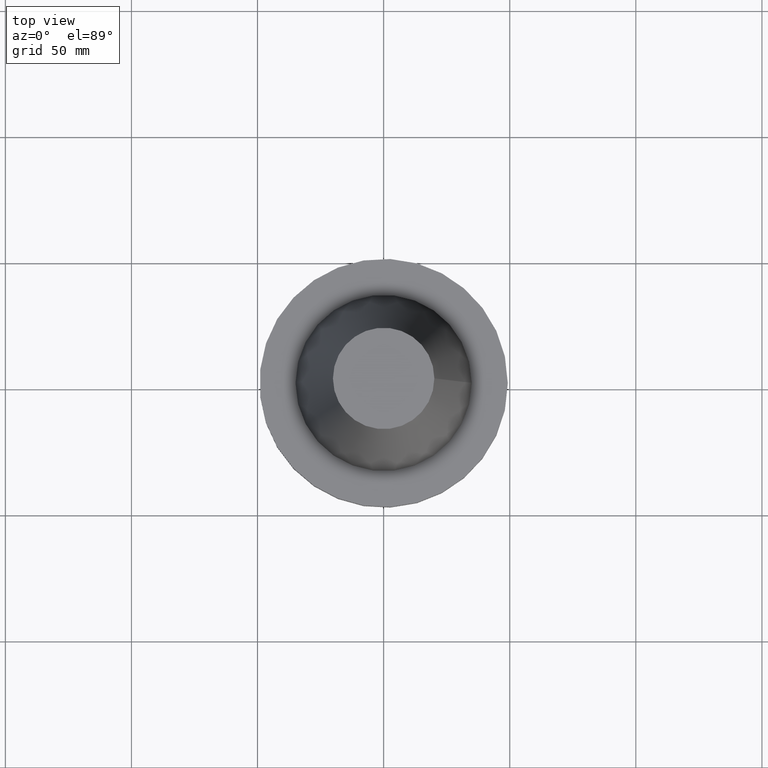
[diagram: clean part render]
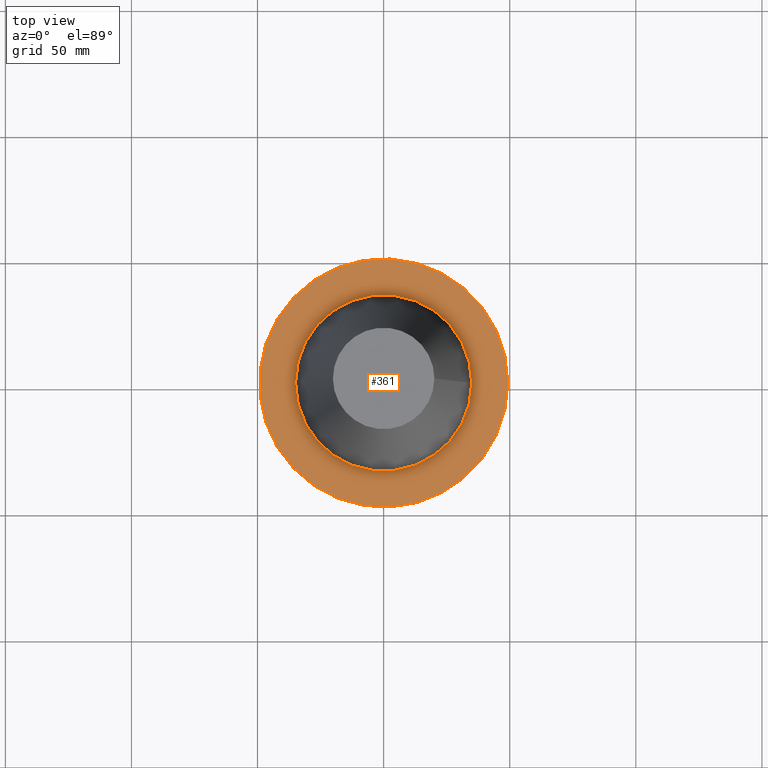
[diagram: same view with one face highlighted and labeled with its STEP entity id]
A machine part, top view. The second image highlights one B-rep face of the part: STEP entity #361.
In plain terms, the highlighted planar face has unit normal (0, 0, -1).
Its self-contained STEP definition (entity closure, byte-faithful):
#15 = CARTESIAN_POINT ( 'NONE',  ( 0.000000000000000000, 0.000000000000000000, -1.499999999999987566 ) ) ;
#70 = EDGE_CURVE ( 'NONE', #109, #109, #123, .T. ) ;
#95 = EDGE_LOOP ( 'NONE', ( #194 ) ) ;
#104 = DIRECTION ( 'NONE',  ( 1.000000000000000000, 0.000000000000000000, 0.000000000000000000 ) ) ;
#109 = VERTEX_POINT ( 'NONE', #141 ) ;
#113 = CARTESIAN_POINT ( 'NONE',  ( 49.21499999999999631, 0.000000000000000000, -1.499999999999987566 ) ) ;
#123 = CIRCLE ( 'NONE', #150, 34.92499999999999005 ) ;
#141 = CARTESIAN_POINT ( 'NONE',  ( 34.92499999999999005, 0.000000000000000000, -1.499999999999987566 ) ) ;
#147 = DIRECTION ( 'NONE',  ( 1.000000000000000000, 0.000000000000000000, 0.000000000000000000 ) ) ;
#150 = AXIS2_PLACEMENT_3D ( 'NONE', #15, #263, #104 ) ;
#177 = PLANE ( 'NONE',  #365 ) ;
#194 = ORIENTED_EDGE ( 'NONE', *, *, #70, .F. ) ;
#206 = FACE_BOUND ( 'NONE', #95, .T. ) ;
#220 = ORIENTED_EDGE ( 'NONE', *, *, #370, .T. ) ;
#245 = CIRCLE ( 'NONE', #302, 49.21499999999999631 ) ;
#263 = DIRECTION ( 'NONE',  ( -0.000000000000000000, -0.000000000000000000, 1.000000000000000000 ) ) ;
#294 = FACE_OUTER_BOUND ( 'NONE', #317, .T. ) ;
#296 = DIRECTION ( 'NONE',  ( -1.000000000000000000, 0.000000000000000000, -0.000000000000000000 ) ) ;
#298 = DIRECTION ( 'NONE',  ( -0.000000000000000000, -0.000000000000000000, 1.000000000000000000 ) ) ;
#302 = AXIS2_PLACEMENT_3D ( 'NONE', #381, #298, #147 ) ;
#317 = EDGE_LOOP ( 'NONE', ( #220 ) ) ;
#331 = DIRECTION ( 'NONE',  ( 0.000000000000000000, 0.000000000000000000, -1.000000000000000000 ) ) ;
#356 = CARTESIAN_POINT ( 'NONE',  ( 0.000000000000000000, 49.21499999999999631, -1.499999999999992895 ) ) ;
#361 = ADVANCED_FACE ( 'NONE', ( #206, #294 ), #177, .F. ) ;
#365 = AXIS2_PLACEMENT_3D ( 'NONE', #356, #331, #296 ) ;
#370 = EDGE_CURVE ( 'NONE', #388, #388, #245, .T. ) ;
#381 = CARTESIAN_POINT ( 'NONE',  ( 0.000000000000000000, 0.000000000000000000, -1.499999999999987566 ) ) ;
#388 = VERTEX_POINT ( 'NONE', #113 ) ;